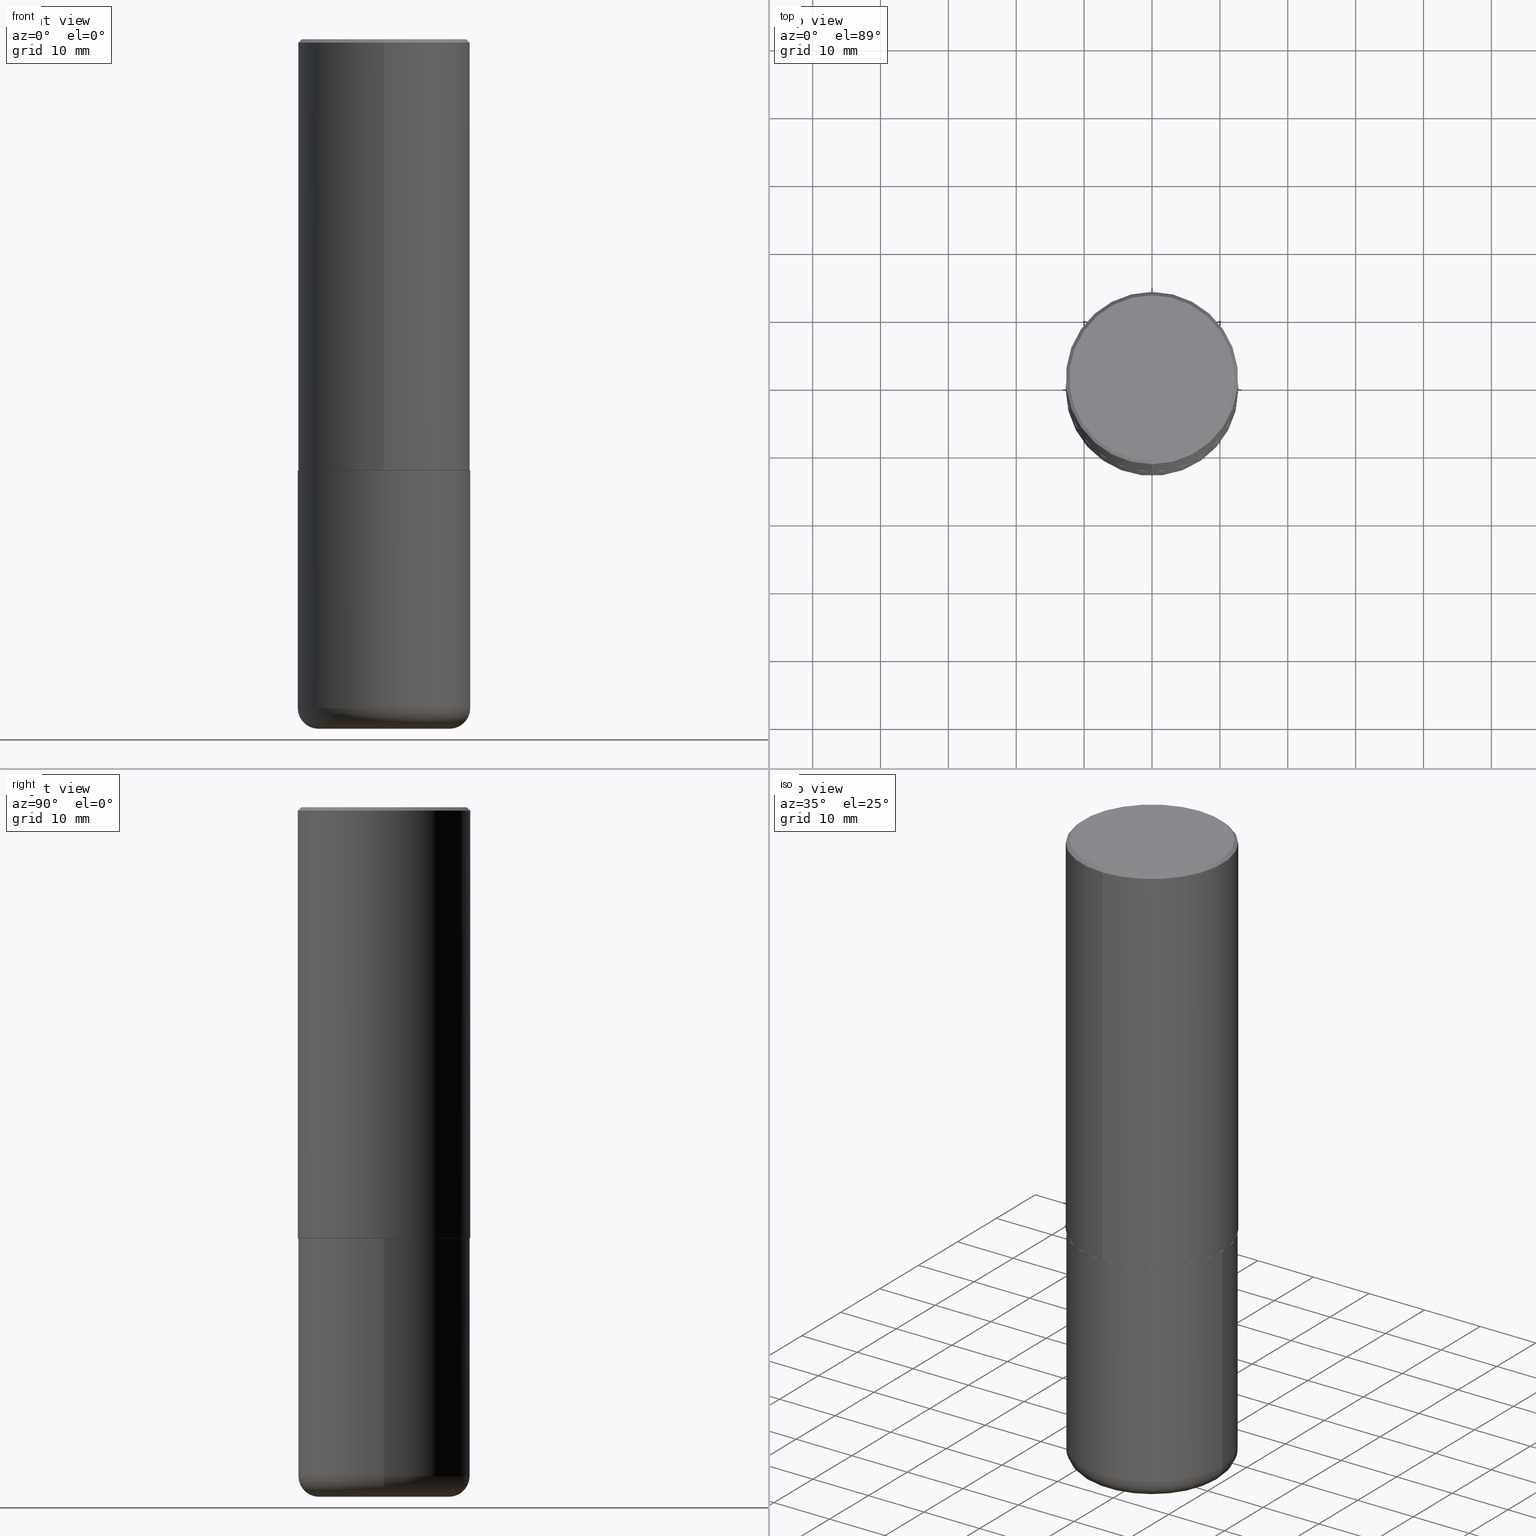
[diagram: canonical four-view strip — front | top / right | iso, engineering-drawing reading convention]
A machine part, canonical four-view strip (front | top / right | iso — engineering-drawing reading convention). The complete STEP part file that produces these views, byte-faithful:
ISO-10303-21;
HEADER;
FILE_DESCRIPTION (( 'STEP AP203' ),
    '1' );
FILE_NAME ('37217.STEP',
    '2024-03-01T22:07:04',
    ( '' ),
    ( '' ),
    'SwSTEP 2.0',
    'SolidWorks 2023',
    '' );
FILE_SCHEMA (( 'CONFIG_CONTROL_DESIGN' ));
ENDSEC;

DATA;
#1 = VECTOR ( 'NONE', #87, 39.37007874015748143 ) ;
#2 = VERTEX_POINT ( 'NONE', #154 ) ;
#3 = EDGE_CURVE ( 'NONE', #106, #397, #16, .T. ) ;
#4 = ORIENTED_EDGE ( 'NONE', *, *, #101, .T. ) ;
#5 = EDGE_LOOP ( 'NONE', ( #300, #267, #142, #177 ) ) ;
#6 = VERTEX_POINT ( 'NONE', #117 ) ;
#7 = ADVANCED_FACE ( 'NONE', ( #236 ), #368, .T. ) ;
#8 = ORIENTED_EDGE ( 'NONE', *, *, #354, .F. ) ;
#9 = DIRECTION ( 'NONE',  ( -2.444946167972934928E-29, 3.492229786509738161E-15, 1.000000000000000000 ) ) ;
#10 = DIRECTION ( 'NONE',  ( 2.444946167972934647E-29, -3.492229786509738161E-15, -1.000000000000000000 ) ) ;
#11 = CARTESIAN_POINT ( 'NONE',  ( -3.484498376165385415E-15, -0.4990000000000087144, -2.499999999999998668 ) ) ;
#12 = CIRCLE ( 'NONE', #123, 0.5000000000000000000 ) ;
#13 = AXIS2_PLACEMENT_3D ( 'NONE', #340, #20, #186 ) ;
#14 = DIRECTION ( 'NONE',  ( -2.444946167972934928E-29, 3.492229786509738161E-15, 1.000000000000000000 ) ) ;
#15 = CARTESIAN_POINT ( 'NONE',  ( -0.3799999999999999489, -1.063004843769755357E-14, -4.000000000000000888 ) ) ;
#16 = LINE ( 'NONE', #111, #394 ) ;
#17 = CC_DESIGN_DATE_AND_TIME_ASSIGNMENT ( #414, #100, ( #195 ) ) ;
#18 = DIRECTION ( 'NONE',  ( -4.937700262165728178E-15, -0.7071067811867141062, 0.7071067811863809283 ) ) ;
#19 = DIRECTION ( 'NONE',  ( -2.445468806185136597E-29, 3.491481338843145583E-15, 1.000000000000000000 ) ) ;
#20 = DIRECTION ( 'NONE',  ( -2.445468806185136597E-29, 3.491481338843145583E-15, 1.000000000000000000 ) ) ;
#21 = CARTESIAN_POINT ( 'NONE',  ( 3.552713678800501718E-15, 0.5000000000000001110, -1.746114893254869475E-15 ) ) ;
#22 = TOROIDAL_SURFACE ( 'NONE', #13, 0.3799999999999999489, 0.1200000000000002176 ) ;
#23 = EDGE_CURVE ( 'NONE', #257, #2, #77, .T. ) ;
#24 = AXIS2_PLACEMENT_3D ( 'NONE', #163, #318, #135 ) ;
#25 = LINE ( 'NONE', #413, #225 ) ;
#26 = APPLICATION_CONTEXT ( 'configuration controlled 3d designs of mechanical parts and assemblies' ) ;
#27 = PERSON_AND_ORGANIZATION ( #297, #45 ) ;
#28 = DIRECTION ( 'NONE',  ( -2.444946167972934928E-29, 3.492229786509738161E-15, 1.000000000000000000 ) ) ;
#29 = VERTEX_POINT ( 'NONE', #344 ) ;
#30 = CALENDAR_DATE ( 2024, 1, 3 ) ;
#31 = APPROVAL_ROLE ( '' ) ;
#32 = AXIS2_PLACEMENT_3D ( 'NONE', #220, #379, #159 ) ;
#33 = CONICAL_SURFACE ( 'NONE', #86, 0.5000000000000000000, 0.7853981633974449483 ) ;
#34 = EDGE_CURVE ( 'NONE', #104, #303, #343, .T. ) ;
#35 = PRODUCT_DEFINITION_SHAPE ( 'NONE', 'NONE',  #195 ) ;
#36 = ORIENTED_EDGE ( 'NONE', *, *, #155, .T. ) ;
#37 = CC_DESIGN_PERSON_AND_ORGANIZATION_ASSIGNMENT ( #129, #219, ( #401 ) ) ;
#38 = AXIS2_PLACEMENT_3D ( 'NONE', #277, #14, #125 ) ;
#39 = LOCAL_TIME ( 17, 7, 4.000000000000000000, #165 ) ;
#40 = ORIENTED_EDGE ( 'NONE', *, *, #3, .F. ) ;
#41 = ORIENTED_EDGE ( 'NONE', *, *, #354, .T. ) ;
#42 = VERTEX_POINT ( 'NONE', #11 ) ;
#43 = CC_DESIGN_PERSON_AND_ORGANIZATION_ASSIGNMENT ( #350, #59, ( #70 ) ) ;
#44 = ORIENTED_EDGE ( 'NONE', *, *, #224, .T. ) ;
#45 = ORGANIZATION ( 'UNSPECIFIED', 'UNSPECIFIED', '' ) ;
#46 = DIRECTION ( 'NONE',  ( -1.000000000000000000, 6.982962677686265922E-15, -4.876176775795935793E-29 ) ) ;
#47 = ADVANCED_BREP_SHAPE_REPRESENTATION ( '37217', ( #338, #202, #24 ), #239 ) ;
#48 = CARTESIAN_POINT ( 'NONE',  ( 9.488418967998330085E-29, -1.354694759471140570E-14, -3.880000000000000338 ) ) ;
#49 = FACE_OUTER_BOUND ( 'NONE', #175, .T. ) ;
#50 = EDGE_CURVE ( 'NONE', #106, #257, #264, .T. ) ;
#51 = AXIS2_PLACEMENT_3D ( 'NONE', #90, #28, #161 ) ;
#52 = DIRECTION ( 'NONE',  ( -1.000000000000000000, 6.982962677686265922E-15, -4.876176775795935793E-29 ) ) ;
#53 = DIRECTION ( 'NONE',  ( 1.000000000000000000, -6.982962677686266711E-15, 4.876176775795935793E-29 ) ) ;
#54 = FACE_OUTER_BOUND ( 'NONE', #162, .T. ) ;
#55 = DIRECTION ( 'NONE',  ( -2.444946167972934928E-29, 3.492229786509738161E-15, 1.000000000000000000 ) ) ;
#56 = EDGE_CURVE ( 'NONE', #263, #322, #221, .T. ) ;
#57 = DIRECTION ( 'NONE',  ( 2.438088387897960049E-29, -3.491481338843145188E-15, -1.000000000000000000 ) ) ;
#58 = LINE ( 'NONE', #192, #316 ) ;
#59 = PERSON_AND_ORGANIZATION_ROLE ( 'classification_officer' ) ;
#60 = AXIS2_PLACEMENT_3D ( 'NONE', #370, #278, #184 ) ;
#61 = CYLINDRICAL_SURFACE ( 'NONE', #383, 0.5000000000000000000 ) ;
#62 =( NAMED_UNIT ( * ) PLANE_ANGLE_UNIT ( ) SI_UNIT ( $, .RADIAN. ) );
#63 = PERSON_AND_ORGANIZATION ( #297, #45 ) ;
#64 = EDGE_CURVE ( 'NONE', #42, #205, #273, .T. ) ;
#65 = ORIENTED_EDGE ( 'NONE', *, *, #301, .T. ) ;
#66 = ADVANCED_FACE ( 'NONE', ( #109 ), #112, .T. ) ;
#67 = EDGE_LOOP ( 'NONE', ( #138, #271, #384, #4 ) ) ;
#68 = AXIS2_PLACEMENT_3D ( 'NONE', #212, #275, #366 ) ;
#69 = AXIS2_PLACEMENT_3D ( 'NONE', #409, #339, #150 ) ;
#70 = SECURITY_CLASSIFICATION ( '', '', #133 ) ;
#71 = ORIENTED_EDGE ( 'NONE', *, *, #173, .T. ) ;
#72 = ORIENTED_EDGE ( 'NONE', *, *, #34, .F. ) ;
#73 = ADVANCED_FACE ( 'NONE', ( #398 ), #110, .T. ) ;
#74 = ORIENTED_EDGE ( 'NONE', *, *, #64, .T. ) ;
#75 = CARTESIAN_POINT ( 'NONE',  ( 4.889892335945895815E-31, -6.984459573019513448E-17, -0.02000000000000010797 ) ) ;
#76 = AXIS2_PLACEMENT_3D ( 'NONE', #346, #9, #341 ) ;
#77 = LINE ( 'NONE', #178, #164 ) ;
#78 = DIRECTION ( 'NONE',  ( 2.438088387897960049E-29, -3.491481338843145188E-15, -1.000000000000000000 ) ) ;
#79 = CARTESIAN_POINT ( 'NONE',  ( 6.112365419932337880E-29, -8.730574466274345798E-15, -2.500000000000000000 ) ) ;
#80 = ADVANCED_FACE ( 'NONE', ( #181 ), #280, .F. ) ;
#81 = FACE_OUTER_BOUND ( 'NONE', #228, .T. ) ;
#82 = DIRECTION ( 'NONE',  ( -6.982962677686265922E-15, -1.000000000000000000, 3.492229786509738161E-15 ) ) ;
#83 = CARTESIAN_POINT ( 'NONE',  ( -0.5000000000000000000, -7.585111792109135179E-15, -2.500000000000000000 ) ) ;
#84 = ORIENTED_EDGE ( 'NONE', *, *, #23, .F. ) ;
#85 = AXIS2_PLACEMENT_3D ( 'NONE', #373, #311, #122 ) ;
#86 = AXIS2_PLACEMENT_3D ( 'NONE', #374, #158, #283 ) ;
#87 = DIRECTION ( 'NONE',  ( 4.937700262164530687E-15, 0.7071067811865426878, -0.7071067811865523467 ) ) ;
#88 = EDGE_CURVE ( 'NONE', #6, #29, #12, .T. ) ;
#89 = DIRECTION ( 'NONE',  ( -1.000000000000000000, 7.105427357601009747E-15, 0.000000000000000000 ) ) ;
#90 = CARTESIAN_POINT ( 'NONE',  ( 6.109920473764365540E-29, -8.727082236487837614E-15, -2.499000000000000110 ) ) ;
#91 = DATE_AND_TIME ( #30, #369 ) ;
#92 = DIRECTION ( 'NONE',  ( -6.982962677686265922E-15, -1.000000000000000000, 3.492229786509738161E-15 ) ) ;
#93 = AXIS2_PLACEMENT_3D ( 'NONE', #281, #130, #410 ) ;
#94 = APPROVAL_PERSON_ORGANIZATION ( #223, #312, #31 ) ;
#95 = CARTESIAN_POINT ( 'NONE',  ( 3.549160965121762351E-15, 0.4989999999999912283, -2.500000000000001776 ) ) ;
#96 = EDGE_LOOP ( 'NONE', ( #334, #137, #391, #230 ) ) ;
#97 = DATE_TIME_ROLE ( 'classification_date' ) ;
#98 = EDGE_CURVE ( 'NONE', #303, #104, #176, .T. ) ;
#99 = DIMENSIONAL_EXPONENTS ( 1.000000000000000000, 0.000000000000000000, 0.000000000000000000, 0.000000000000000000, 0.000000000000000000, 0.000000000000000000, 0.000000000000000000 ) ;
#100 = DATE_TIME_ROLE ( 'creation_date' ) ;
#101 = EDGE_CURVE ( 'NONE', #29, #6, #256, .T. ) ;
#102 = ORIENTED_EDGE ( 'NONE', *, *, #233, .F. ) ;
#103 = ORIENTED_EDGE ( 'NONE', *, *, #98, .F. ) ;
#104 = VERTEX_POINT ( 'NONE', #15 ) ;
#105 = AXIS2_PLACEMENT_3D ( 'NONE', #237, #378, #118 ) ;
#106 = VERTEX_POINT ( 'NONE', #400 ) ;
#107 = ADVANCED_FACE ( 'NONE', ( #151 ), #248, .T. ) ;
#108 = ORIENTED_EDGE ( 'NONE', *, *, #64, .F. ) ;
#109 = FACE_OUTER_BOUND ( 'NONE', #5, .T. ) ;
#110 = CYLINDRICAL_SURFACE ( 'NONE', #335, 0.5000000000000000000 ) ;
#111 = CARTESIAN_POINT ( 'NONE',  ( -0.5000000000000000000, 3.552713678800500929E-15, -2.459467545127452891E-29 ) ) ;
#112 = CYLINDRICAL_SURFACE ( 'NONE', #76, 0.5000000000000001110 ) ;
#113 = DIRECTION ( 'NONE',  ( 6.982962677686265922E-15, 1.000000000000000000, -3.492229786509738161E-15 ) ) ;
#114 = CIRCLE ( 'NONE', #93, 0.5000000000000001110 ) ;
#115 = ADVANCED_FACE ( 'NONE', ( #119 ), #245, .F. ) ;
#116 = CARTESIAN_POINT ( 'NONE',  ( 6.113672015462842613E-29, -8.728703347107864943E-15, -2.500000000000000000 ) ) ;
#117 = CARTESIAN_POINT ( 'NONE',  ( -3.430248998885764992E-15, -0.5000000000000001110, -0.01999999999999835937 ) ) ;
#118 = DIRECTION ( 'NONE',  ( 1.000000000000000000, -6.982962677686272233E-15, 0.000000000000000000 ) ) ;
#119 = FACE_OUTER_BOUND ( 'NONE', #203, .T. ) ;
#120 = DIRECTION ( 'NONE',  ( -2.444946167972934928E-29, 3.492229786509738161E-15, 1.000000000000000000 ) ) ;
#121 = CC_DESIGN_PERSON_AND_ORGANIZATION_ASSIGNMENT ( #27, #385, ( #195 ) ) ;
#122 = DIRECTION ( 'NONE',  ( -6.982962677686265922E-15, -1.000000000000000000, 3.492229786509738161E-15 ) ) ;
#123 = AXIS2_PLACEMENT_3D ( 'NONE', #187, #235, #377 ) ;
#124 = UNCERTAINTY_MEASURE_WITH_UNIT (LENGTH_MEASURE( 1.000000000000000082E-05 ), #353, 'distance_accuracy_value', 'NONE');
#125 = DIRECTION ( 'NONE',  ( -6.982962677686265922E-15, -1.000000000000000000, 3.284787166730577015E-15 ) ) ;
#126 = LINE ( 'NONE', #408, #407 ) ;
#127 = MECHANICAL_CONTEXT ( 'NONE', #324, 'mechanical' ) ;
#128 = DIRECTION ( 'NONE',  ( 5.024295867789263036E-15, 0.7071067811867189912, 0.7071067811863760433 ) ) ;
#129 = PERSON_AND_ORGANIZATION ( #297, #45 ) ;
#130 = DIRECTION ( 'NONE',  ( -2.445468806185136597E-29, 3.491481338843145583E-15, 1.000000000000000000 ) ) ;
#131 = ORIENTED_EDGE ( 'NONE', *, *, #143, .T. ) ;
#132 = CIRCLE ( 'NONE', #361, 0.4989999999999999991 ) ;
#133 = SECURITY_CLASSIFICATION_LEVEL ( 'unclassified' ) ;
#134 = DATE_AND_TIME ( #416, #396 ) ;
#135 = DIRECTION ( 'NONE',  ( 1.000000000000000000, 0.000000000000000000, 0.000000000000000000 ) ) ;
#136 = AXIS2_PLACEMENT_3D ( 'NONE', #252, #286, #92 ) ;
#137 = ORIENTED_EDGE ( 'NONE', *, *, #233, .T. ) ;
#138 = ORIENTED_EDGE ( 'NONE', *, *, #173, .F. ) ;
#139 = ORIENTED_EDGE ( 'NONE', *, *, #218, .T. ) ;
#140 = ADVANCED_FACE ( 'NONE', ( #284 ), #61, .T. ) ;
#141 = AXIS2_PLACEMENT_3D ( 'NONE', #342, #345, #180 ) ;
#142 = ORIENTED_EDGE ( 'NONE', *, *, #88, .F. ) ;
#143 = EDGE_CURVE ( 'NONE', #205, #266, #25, .T. ) ;
#144 = DIRECTION ( 'NONE',  ( -6.982962677686265922E-15, -1.000000000000000000, 3.491643216902136408E-15 ) ) ;
#145 = DIRECTION ( 'NONE',  ( -6.982962677686265922E-15, -1.000000000000000000, 3.284787166730577015E-15 ) ) ;
#146 = LINE ( 'NONE', #210, #1 ) ;
#147 = CARTESIAN_POINT ( 'NONE',  ( 0.000000000000000000, 0.000000000000000000, 0.000000000000000000 ) ) ;
#148 = CIRCLE ( 'NONE', #389, 0.5000000000000000000 ) ;
#149 = DIRECTION ( 'NONE',  ( -2.445468806185136597E-29, 3.491481338843145583E-15, 1.000000000000000000 ) ) ;
#150 = DIRECTION ( 'NONE',  ( -6.982962677686265922E-15, -1.000000000000000000, 3.492229786509738161E-15 ) ) ;
#151 = FACE_OUTER_BOUND ( 'NONE', #67, .T. ) ;
#152 = DIRECTION ( 'NONE',  ( -2.444946167972934928E-29, 3.492229786509738161E-15, 1.000000000000000000 ) ) ;
#153 = CYLINDRICAL_SURFACE ( 'NONE', #69, 0.5000000000000001110 ) ;
#154 = CARTESIAN_POINT ( 'NONE',  ( 0.5000000000000000000, -1.222018468595099830E-14, -2.500000000000000000 ) ) ;
#155 = EDGE_CURVE ( 'NONE', #257, #106, #114, .T. ) ;
#156 =( LENGTH_UNIT ( ) NAMED_UNIT ( * ) SI_UNIT ( $, .METRE. ) );
#157 = VECTOR ( 'NONE', #348, 39.37007874015748143 ) ;
#158 = DIRECTION ( 'NONE',  ( 2.444946167972934928E-29, -3.492229786509738161E-15, -1.000000000000000000 ) ) ;
#159 = DIRECTION ( 'NONE',  ( 1.000000000000000000, -6.982962677686269077E-15, 0.000000000000000000 ) ) ;
#160 = COORDINATED_UNIVERSAL_TIME_OFFSET ( 5, 0, .BEHIND. ) ;
#161 = DIRECTION ( 'NONE',  ( -6.982962677686266711E-15, -1.000000000000000000, 3.278217592397114284E-15 ) ) ;
#162 = EDGE_LOOP ( 'NONE', ( #229, #44 ) ) ;
#163 = CARTESIAN_POINT ( 'NONE',  ( 0.000000000000000000, 0.000000000000000000, 0.000000000000000000 ) ) ;
#164 = VECTOR ( 'NONE', #246, 39.37007874015748143 ) ;
#165 = COORDINATED_UNIVERSAL_TIME_OFFSET ( 5, 0, .BEHIND. ) ;
#166 = CC_DESIGN_APPROVAL ( #211, ( #401 ) ) ;
#167 = PRODUCT_RELATED_PRODUCT_CATEGORY ( 'detail', '', ( #199 ) ) ;
#168 = PERSON_AND_ORGANIZATION ( #297, #45 ) ;
#169 = APPLICATION_PROTOCOL_DEFINITION ( 'international standard', 'config_control_design', 1994, #26 ) ;
#170 = ORIENTED_EDGE ( 'NONE', *, *, #261, .F. ) ;
#171 = CIRCLE ( 'NONE', #32, 0.5000000000000000000 ) ;
#172 = ORIENTED_EDGE ( 'NONE', *, *, #143, .F. ) ;
#173 = EDGE_CURVE ( 'NONE', #322, #6, #58, .T. ) ;
#174 = EDGE_LOOP ( 'NONE', ( #74, #131, #362, #268 ) ) ;
#175 = EDGE_LOOP ( 'NONE', ( #170, #390, #41, #347 ) ) ;
#176 = CIRCLE ( 'NONE', #68, 0.3799999999999999489 ) ;
#177 = ORIENTED_EDGE ( 'NONE', *, *, #185, .F. ) ;
#178 = CARTESIAN_POINT ( 'NONE',  ( 0.5000000000000000000, -3.491481338843133355E-15, 2.438088387897967896E-29 ) ) ;
#179 = CARTESIAN_POINT ( 'NONE',  ( 6.109920473764365540E-29, -8.727082236487837614E-15, -2.499000000000000110 ) ) ;
#180 = DIRECTION ( 'NONE',  ( 1.000000000000000000, -6.982962677686268288E-15, 4.883557194083113462E-29 ) ) ;
#181 = FACE_OUTER_BOUND ( 'NONE', #260, .T. ) ;
#182 = CC_DESIGN_SECURITY_CLASSIFICATION ( #70, ( #401 ) ) ;
#183 = CARTESIAN_POINT ( 'NONE',  ( 3.421651712066270057E-15, 0.4799999999999998157, -1.449679880669387470E-15 ) ) ;
#184 = DIRECTION ( 'NONE',  ( 6.982962677686265922E-15, 1.000000000000000000, -3.491643216902136408E-15 ) ) ;
#185 = EDGE_CURVE ( 'NONE', #200, #6, #126, .T. ) ;
#186 = DIRECTION ( 'NONE',  ( 1.000000000000000000, -6.982962677686268288E-15, 4.883557194083113462E-29 ) ) ;
#187 = CARTESIAN_POINT ( 'NONE',  ( 4.889892335945895815E-31, -6.984459573019513448E-17, -0.02000000000000010797 ) ) ;
#188 = DIRECTION ( 'NONE',  ( -6.982962677686266711E-15, -1.000000000000000000, 3.278217592397114284E-15 ) ) ;
#189 = DIRECTION ( 'NONE',  ( -4.851104656540947709E-15, -0.7071067811865475727, -0.7071067811865474617 ) ) ;
#190 = CC_DESIGN_APPROVAL ( #191, ( #195 ) ) ;
#191 = APPROVAL ( #197, 'UNSPECIFIED' ) ;
#192 = CARTESIAN_POINT ( 'NONE',  ( -3.430248998885764992E-15, -0.5000000000000001110, -0.01999999999999835937 ) ) ;
#193 = COORDINATED_UNIVERSAL_TIME_OFFSET ( 5, 0, .BEHIND. ) ;
#194 = LENGTH_MEASURE_WITH_UNIT ( LENGTH_MEASURE( 0.02539999999999999897 ), #156 );
#195 = PRODUCT_DEFINITION ( 'UNKNOWN', '', #401, #215 ) ;
#196 = AXIS2_PLACEMENT_3D ( 'NONE', #179, #372, #188 ) ;
#197 = APPROVAL_STATUS ( 'not_yet_approved' ) ;
#198 = ORIENTED_EDGE ( 'NONE', *, *, #23, .T. ) ;
#199 = PRODUCT ( '37217', '37217', '', ( #127 ) ) ;
#200 = VERTEX_POINT ( 'NONE', #319 ) ;
#201 = AXIS2_PLACEMENT_3D ( 'NONE', #403, #242, #82 ) ;
#202 = MANIFOLD_SOLID_BREP ( 'Body-Move/Copy2[2]', #296 ) ;
#203 = EDGE_LOOP ( 'NONE', ( #108, #204 ) ) ;
#204 = ORIENTED_EDGE ( 'NONE', *, *, #321, .F. ) ;
#205 = VERTEX_POINT ( 'NONE', #95 ) ;
#206 = AXIS2_PLACEMENT_3D ( 'NONE', #304, #57, #52 ) ;
#207 = FACE_OUTER_BOUND ( 'NONE', #234, .T. ) ;
#208 = DIRECTION ( 'NONE',  ( 1.000000000000000000, -6.982962677686267499E-15, 0.000000000000000000 ) ) ;
#209 = CARTESIAN_POINT ( 'NONE',  ( 0.3799999999999999489, -1.661945117289336400E-14, -4.000000000000000888 ) ) ;
#210 = CARTESIAN_POINT ( 'NONE',  ( 3.491481338843133355E-15, 0.4999999999999999445, -0.02000000000000185310 ) ) ;
#211 = APPROVAL ( #222, 'UNSPECIFIED' ) ;
#212 = CARTESIAN_POINT ( 'NONE',  ( 9.781875224740547508E-29, -1.396592535537258391E-14, -4.000000000000000888 ) ) ;
#213 = CIRCLE ( 'NONE', #136, 0.4799999999999998157 ) ;
#214 = FACE_OUTER_BOUND ( 'NONE', #360, .T. ) ;
#215 = DESIGN_CONTEXT ( 'detailed design', #26, 'design' ) ;
#216 = LINE ( 'NONE', #241, #325 ) ;
#217 = CARTESIAN_POINT ( 'NONE',  ( 6.113672015462842613E-29, -8.728703347107864943E-15, -2.500000000000000000 ) ) ;
#218 = EDGE_CURVE ( 'NONE', #322, #263, #213, .T. ) ;
#219 = PERSON_AND_ORGANIZATION_ROLE ( 'design_supplier' ) ;
#220 = CARTESIAN_POINT ( 'NONE',  ( 6.113672015462842613E-29, -8.728703347107864943E-15, -2.500000000000000000 ) ) ;
#221 = CIRCLE ( 'NONE', #201, 0.4799999999999998157 ) ;
#222 = APPROVAL_STATUS ( 'not_yet_approved' ) ;
#223 = PERSON_AND_ORGANIZATION ( #297, #45 ) ;
#224 = EDGE_CURVE ( 'NONE', #397, #2, #171, .T. ) ;
#225 = VECTOR ( 'NONE', #128, 39.37007874015748143 ) ;
#226 = APPLICATION_PROTOCOL_DEFINITION ( 'international standard', 'config_control_design', 1994, #324 ) ;
#227 = APPROVAL_PERSON_ORGANIZATION ( #168, #191, #288 ) ;
#228 = EDGE_LOOP ( 'NONE', ( #103, #72 ) ) ;
#229 = ORIENTED_EDGE ( 'NONE', *, *, #243, .T. ) ;
#230 = ORIENTED_EDGE ( 'NONE', *, *, #101, .F. ) ;
#231 = CIRCLE ( 'NONE', #51, 0.5000000000000002220 ) ;
#232 = EDGE_LOOP ( 'NONE', ( #36, #329, #392, #84 ) ) ;
#233 = EDGE_CURVE ( 'NONE', #266, #200, #231, .T. ) ;
#234 = EDGE_LOOP ( 'NONE', ( #172, #299, #65, #102 ) ) ;
#235 = DIRECTION ( 'NONE',  ( -2.444946167972934928E-29, 3.492229786509738161E-15, 1.000000000000000000 ) ) ;
#236 = FACE_OUTER_BOUND ( 'NONE', #174, .T. ) ;
#237 = CARTESIAN_POINT ( 'NONE',  ( 0.3799999999999999489, -1.620047341223218736E-14, -3.880000000000000338 ) ) ;
#238 = AXIS2_PLACEMENT_3D ( 'NONE', #305, #272, #208 ) ;
#239 =( GEOMETRIC_REPRESENTATION_CONTEXT ( 3 ) GLOBAL_UNCERTAINTY_ASSIGNED_CONTEXT ( ( #124 ) ) GLOBAL_UNIT_ASSIGNED_CONTEXT ( ( #353, #62, #381 ) ) REPRESENTATION_CONTEXT ( 'NONE', 'WORKASPACE' ) );
#240 = CARTESIAN_POINT ( 'NONE',  ( 3.351822085289406364E-15, 0.4799999999999998157, -1.562975089097030468E-15 ) ) ;
#241 = CARTESIAN_POINT ( 'NONE',  ( -3.484498376165385415E-15, -0.4990000000000087144, -2.499999999999998668 ) ) ;
#242 = DIRECTION ( 'NONE',  ( -2.444946167972934928E-29, 3.492229786509738161E-15, 1.000000000000000000 ) ) ;
#243 = EDGE_CURVE ( 'NONE', #2, #397, #148, .T. ) ;
#244 = LINE ( 'NONE', #21, #157 ) ;
#245 = PLANE ( 'NONE',  #85 ) ;
#246 = DIRECTION ( 'NONE',  ( -2.445468806185136877E-29, 3.491481338843145188E-15, 1.000000000000000000 ) ) ;
#247 = PLANE ( 'NONE',  #206 ) ;
#248 = CONICAL_SURFACE ( 'NONE', #60, 0.5000000000000000000, 0.7853981633974449483 ) ;
#249 = FACE_OUTER_BOUND ( 'NONE', #395, .T. ) ;
#250 = CARTESIAN_POINT ( 'NONE',  ( 0.000000000000000000, 0.000000000000000000, 0.000000000000000000 ) ) ;
#251 = PERSON_AND_ORGANIZATION_ROLE ( 'creator' ) ;
#252 = CARTESIAN_POINT ( 'NONE',  ( -5.540013713897219376E-45, 7.913058030796886371E-31, 2.265904168552862416E-16 ) ) ;
#253 = COORDINATED_UNIVERSAL_TIME_OFFSET ( 5, 0, .BEHIND. ) ;
#254 = DIRECTION ( 'NONE',  ( 1.000000000000000000, -6.982962677686266711E-15, 4.876176775795935793E-29 ) ) ;
#255 = CLOSED_SHELL ( 'NONE', ( #73, #327, #405, #140, #393, #363 ) ) ;
#256 = CIRCLE ( 'NONE', #356, 0.5000000000000000000 ) ;
#257 = VERTEX_POINT ( 'NONE', #351 ) ;
#258 = LOCAL_TIME ( 17, 7, 4.000000000000000000, #193 ) ;
#259 = CALENDAR_DATE ( 2024, 1, 3 ) ;
#260 = EDGE_LOOP ( 'NONE', ( #333, #139 ) ) ;
#261 = EDGE_CURVE ( 'NONE', #104, #106, #352, .T. ) ;
#262 = PERSON_AND_ORGANIZATION ( #297, #45 ) ;
#263 = VERTEX_POINT ( 'NONE', #183 ) ;
#264 = CIRCLE ( 'NONE', #269, 0.5000000000000001110 ) ;
#265 = CC_DESIGN_PERSON_AND_ORGANIZATION_ASSIGNMENT ( #293, #251, ( #401 ) ) ;
#266 = VERTEX_POINT ( 'NONE', #306 ) ;
#267 = ORIENTED_EDGE ( 'NONE', *, *, #357, .T. ) ;
#268 = ORIENTED_EDGE ( 'NONE', *, *, #301, .F. ) ;
#269 = AXIS2_PLACEMENT_3D ( 'NONE', #48, #149, #276 ) ;
#270 = AXIS2_PLACEMENT_3D ( 'NONE', #116, #78, #46 ) ;
#271 = ORIENTED_EDGE ( 'NONE', *, *, #56, .F. ) ;
#272 = DIRECTION ( 'NONE',  ( -2.445468806185136597E-29, 3.491481338843145583E-15, 1.000000000000000000 ) ) ;
#273 = CIRCLE ( 'NONE', #302, 0.4989999999999999991 ) ;
#274 = LOCAL_TIME ( 17, 7, 4.000000000000000000, #160 ) ;
#275 = DIRECTION ( 'NONE',  ( -2.445468806185136597E-29, 3.491481338843145583E-15, 1.000000000000000000 ) ) ;
#276 = DIRECTION ( 'NONE',  ( 1.000000000000000000, -6.982962677686265133E-15, 0.000000000000000000 ) ) ;
#277 = CARTESIAN_POINT ( 'NONE',  ( 6.112365419932337880E-29, -8.730574466274345798E-15, -2.500000000000000000 ) ) ;
#278 = DIRECTION ( 'NONE',  ( 2.444946167972934928E-29, -3.492229786509738161E-15, -1.000000000000000000 ) ) ;
#279 = DIRECTION ( 'NONE',  ( 7.105427357601001859E-15, 1.000000000000000000, -3.491481338843145583E-15 ) ) ;
#280 = PLANE ( 'NONE',  #282 ) ;
#281 = CARTESIAN_POINT ( 'NONE',  ( 9.488418967998330085E-29, -1.354694759471140570E-14, -3.880000000000000338 ) ) ;
#282 = AXIS2_PLACEMENT_3D ( 'NONE', #240, #10, #113 ) ;
#283 = DIRECTION ( 'NONE',  ( 6.982962677686265922E-15, 1.000000000000000000, -3.491643216902136408E-15 ) ) ;
#284 = FACE_OUTER_BOUND ( 'NONE', #359, .T. ) ;
#285 = CARTESIAN_POINT ( 'NONE',  ( 6.112365419932337880E-29, -8.730574466274345798E-15, -2.500000000000000000 ) ) ;
#286 = DIRECTION ( 'NONE',  ( -2.444946167972934928E-29, 3.492229786509738161E-15, 1.000000000000000000 ) ) ;
#287 = ORIENTED_EDGE ( 'NONE', *, *, #98, .T. ) ;
#288 = APPROVAL_ROLE ( '' ) ;
#289 = AXIS2_PLACEMENT_3D ( 'NONE', #314, #279, #89 ) ;
#290 = ADVANCED_FACE ( 'NONE', ( #207 ), #307, .T. ) ;
#291 = COORDINATED_UNIVERSAL_TIME_OFFSET ( 5, 0, .BEHIND. ) ;
#292 = SHAPE_DEFINITION_REPRESENTATION ( #35, #47 ) ;
#293 = PERSON_AND_ORGANIZATION ( #297, #45 ) ;
#294 = ADVANCED_FACE ( 'NONE', ( #371 ), #153, .T. ) ;
#295 = ORIENTED_EDGE ( 'NONE', *, *, #224, .F. ) ;
#296 = CLOSED_SHELL ( 'NONE', ( #7, #66, #376, #107, #294, #290, #115, #80 ) ) ;
#297 = PERSON ( 'UNSPECIFIED', 'UNSPECIFIED', 'UNSPECIFIED', ('UNSPECIFIED'), ('UNSPECIFIED'), ('UNSPECIFIED') ) ;
#298 = ORIENTED_EDGE ( 'NONE', *, *, #261, .T. ) ;
#299 = ORIENTED_EDGE ( 'NONE', *, *, #321, .T. ) ;
#300 = ORIENTED_EDGE ( 'NONE', *, *, #367, .T. ) ;
#301 = EDGE_CURVE ( 'NONE', #42, #200, #216, .T. ) ;
#302 = AXIS2_PLACEMENT_3D ( 'NONE', #285, #55, #399 ) ;
#303 = VERTEX_POINT ( 'NONE', #209 ) ;
#304 = CARTESIAN_POINT ( 'NONE',  ( 5.765792576136407414E-29, -1.971718428940261207E-14, -4.000000000000000000 ) ) ;
#305 = CARTESIAN_POINT ( 'NONE',  ( 9.781875224740547508E-29, -1.396592535537258391E-14, -4.000000000000000888 ) ) ;
#306 = CARTESIAN_POINT ( 'NONE',  ( 3.552713678800533273E-15, 0.4999999999999916178, -2.499000000000001886 ) ) ;
#307 = CONICAL_SURFACE ( 'NONE', #38, 0.4989999999999999991, 0.7853981633976873100 ) ;
#308 = CC_DESIGN_APPROVAL ( #312, ( #70 ) ) ;
#309 = ORIENTED_EDGE ( 'NONE', *, *, #155, .F. ) ;
#310 = DIRECTION ( 'NONE',  ( -6.982962677686265922E-15, -1.000000000000000000, 3.284787166730577015E-15 ) ) ;
#311 = DIRECTION ( 'NONE',  ( -2.444946167972934647E-29, 3.492229786509738161E-15, 1.000000000000000000 ) ) ;
#312 = APPROVAL ( #355, 'UNSPECIFIED' ) ;
#313 = DIRECTION ( 'NONE',  ( -2.445468806185136877E-29, 3.491481338843145188E-15, 1.000000000000000000 ) ) ;
#314 = CARTESIAN_POINT ( 'NONE',  ( -0.3799999999999999489, -1.084688519882302575E-14, -3.880000000000000338 ) ) ;
#315 = DIRECTION ( 'NONE',  ( -2.445468806185136597E-29, 3.491481338843145583E-15, 1.000000000000000000 ) ) ;
#316 = VECTOR ( 'NONE', #189, 39.37007874015748143 ) ;
#317 = APPROVAL_PERSON_ORGANIZATION ( #63, #211, #320 ) ;
#318 = DIRECTION ( 'NONE',  ( 0.000000000000000000, 0.000000000000000000, 1.000000000000000000 ) ) ;
#319 = CARTESIAN_POINT ( 'NONE',  ( -3.491481338843073796E-15, -0.5000000000000089928, -2.498999999999998778 ) ) ;
#320 = APPROVAL_ROLE ( '' ) ;
#321 = EDGE_CURVE ( 'NONE', #205, #42, #132, .T. ) ;
#322 = VERTEX_POINT ( 'NONE', #404 ) ;
#323 = DATE_AND_TIME ( #259, #274 ) ;
#324 = APPLICATION_CONTEXT ( 'configuration controlled 3d designs of mechanical parts and assemblies' ) ;
#325 = VECTOR ( 'NONE', #18, 39.37007874015748143 ) ;
#326 = APPROVAL_DATE_TIME ( #134, #312 ) ;
#327 = ADVANCED_FACE ( 'NONE', ( #249 ), #415, .T. ) ;
#328 = PERSON_AND_ORGANIZATION_ROLE ( 'design_owner' ) ;
#329 = ORIENTED_EDGE ( 'NONE', *, *, #3, .T. ) ;
#330 = ORIENTED_EDGE ( 'NONE', *, *, #411, .F. ) ;
#331 = CIRCLE ( 'NONE', #105, 0.1200000000000002176 ) ;
#332 = ORIENTED_EDGE ( 'NONE', *, *, #218, .F. ) ;
#333 = ORIENTED_EDGE ( 'NONE', *, *, #56, .T. ) ;
#334 = ORIENTED_EDGE ( 'NONE', *, *, #357, .F. ) ;
#335 = AXIS2_PLACEMENT_3D ( 'NONE', #147, #19, #53 ) ;
#336 = DIRECTION ( 'NONE',  ( -2.444946167972934928E-29, 3.492229786509738161E-15, 1.000000000000000000 ) ) ;
#337 = CC_DESIGN_PERSON_AND_ORGANIZATION_ASSIGNMENT ( #262, #328, ( #199 ) ) ;
#338 = MANIFOLD_SOLID_BREP ( 'Body-Move/Copy2[1]', #255 ) ;
#339 = DIRECTION ( 'NONE',  ( -2.444946167972934928E-29, 3.492229786509738161E-15, 1.000000000000000000 ) ) ;
#340 = CARTESIAN_POINT ( 'NONE',  ( 9.488418967998330085E-29, -1.354694759471140570E-14, -3.880000000000000338 ) ) ;
#341 = DIRECTION ( 'NONE',  ( -6.982962677686265922E-15, -1.000000000000000000, 3.492229786509738161E-15 ) ) ;
#342 = CARTESIAN_POINT ( 'NONE',  ( 9.488418967998330085E-29, -1.354694759471140570E-14, -3.880000000000000338 ) ) ;
#343 = CIRCLE ( 'NONE', #238, 0.3799999999999999489 ) ;
#344 = CARTESIAN_POINT ( 'NONE',  ( 3.491481338843133355E-15, 0.4999999999999999445, -0.02000000000000185310 ) ) ;
#345 = DIRECTION ( 'NONE',  ( -2.445468806185136597E-29, 3.491481338843145583E-15, 1.000000000000000000 ) ) ;
#346 = CARTESIAN_POINT ( 'NONE',  ( 0.000000000000000000, 0.000000000000000000, 0.000000000000000000 ) ) ;
#347 = ORIENTED_EDGE ( 'NONE', *, *, #50, .F. ) ;
#348 = DIRECTION ( 'NONE',  ( -2.444946167972934928E-29, 3.492229786509738161E-15, 1.000000000000000000 ) ) ;
#349 = DIRECTION ( 'NONE',  ( -2.445468806185136597E-29, 3.491481338843145583E-15, 1.000000000000000000 ) ) ;
#350 = PERSON_AND_ORGANIZATION ( #297, #45 ) ;
#351 = CARTESIAN_POINT ( 'NONE',  ( 0.5000000000000001110, -1.703842893355454063E-14, -3.880000000000000338 ) ) ;
#352 = CIRCLE ( 'NONE', #289, 0.1200000000000002176 ) ;
#353 =( CONVERSION_BASED_UNIT ( 'INCH', #194 ) LENGTH_UNIT ( ) NAMED_UNIT ( #99 ) );
#354 = EDGE_CURVE ( 'NONE', #303, #257, #331, .T. ) ;
#355 = APPROVAL_STATUS ( 'not_yet_approved' ) ;
#356 = AXIS2_PLACEMENT_3D ( 'NONE', #75, #336, #144 ) ;
#357 = EDGE_CURVE ( 'NONE', #266, #29, #244, .T. ) ;
#358 = APPROVAL_DATE_TIME ( #91, #211 ) ;
#359 = EDGE_LOOP ( 'NONE', ( #40, #364, #198, #295 ) ) ;
#360 = EDGE_LOOP ( 'NONE', ( #332, #71, #365, #330 ) ) ;
#361 = AXIS2_PLACEMENT_3D ( 'NONE', #406, #120, #310 ) ;
#362 = ORIENTED_EDGE ( 'NONE', *, *, #367, .F. ) ;
#363 = ADVANCED_FACE ( 'NONE', ( #81 ), #247, .T. ) ;
#364 = ORIENTED_EDGE ( 'NONE', *, *, #50, .T. ) ;
#365 = ORIENTED_EDGE ( 'NONE', *, *, #88, .T. ) ;
#366 = DIRECTION ( 'NONE',  ( 1.000000000000000000, -6.982962677686267499E-15, 0.000000000000000000 ) ) ;
#367 = EDGE_CURVE ( 'NONE', #200, #266, #375, .T. ) ;
#368 = CONICAL_SURFACE ( 'NONE', #418, 0.4989999999999999991, 0.7853981633976873100 ) ;
#369 = LOCAL_TIME ( 17, 7, 4.000000000000000000, #253 ) ;
#370 = CARTESIAN_POINT ( 'NONE',  ( 4.889892335945895815E-31, -6.984459573019513448E-17, -0.02000000000000010797 ) ) ;
#371 = FACE_OUTER_BOUND ( 'NONE', #96, .T. ) ;
#372 = DIRECTION ( 'NONE',  ( -2.444946167972934928E-29, 3.492229786509738161E-15, 1.000000000000000000 ) ) ;
#373 = CARTESIAN_POINT ( 'NONE',  ( 6.112365419932337880E-29, -8.730574466274345798E-15, -2.500000000000000000 ) ) ;
#374 = CARTESIAN_POINT ( 'NONE',  ( 4.889892335945895815E-31, -6.984459573019513448E-17, -0.02000000000000010797 ) ) ;
#375 = CIRCLE ( 'NONE', #196, 0.5000000000000002220 ) ;
#376 = ADVANCED_FACE ( 'NONE', ( #214 ), #33, .T. ) ;
#377 = DIRECTION ( 'NONE',  ( -6.982962677686265922E-15, -1.000000000000000000, 3.491643216902136408E-15 ) ) ;
#378 = DIRECTION ( 'NONE',  ( -6.982962677686266711E-15, -1.000000000000000000, 3.491481338843145583E-15 ) ) ;
#379 = DIRECTION ( 'NONE',  ( -2.445468806185136597E-29, 3.491481338843145583E-15, 1.000000000000000000 ) ) ;
#380 = DIRECTION ( 'NONE',  ( 1.000000000000000000, -6.982962677686269077E-15, 0.000000000000000000 ) ) ;
#381 =( NAMED_UNIT ( * ) SI_UNIT ( $, .STERADIAN. ) SOLID_ANGLE_UNIT ( ) );
#382 = DIRECTION ( 'NONE',  ( -2.444946167972934928E-29, 3.492229786509738161E-15, 1.000000000000000000 ) ) ;
#383 = AXIS2_PLACEMENT_3D ( 'NONE', #250, #315, #254 ) ;
#384 = ORIENTED_EDGE ( 'NONE', *, *, #411, .T. ) ;
#385 = PERSON_AND_ORGANIZATION_ROLE ( 'creator' ) ;
#386 = CALENDAR_DATE ( 2024, 1, 3 ) ;
#387 = CC_DESIGN_DATE_AND_TIME_ASSIGNMENT ( #323, #97, ( #70 ) ) ;
#388 = CALENDAR_DATE ( 2024, 1, 3 ) ;
#389 = AXIS2_PLACEMENT_3D ( 'NONE', #217, #349, #380 ) ;
#390 = ORIENTED_EDGE ( 'NONE', *, *, #34, .T. ) ;
#391 = ORIENTED_EDGE ( 'NONE', *, *, #185, .T. ) ;
#392 = ORIENTED_EDGE ( 'NONE', *, *, #243, .F. ) ;
#393 = ADVANCED_FACE ( 'NONE', ( #49 ), #22, .T. ) ;
#394 = VECTOR ( 'NONE', #313, 39.37007874015748143 ) ;
#395 = EDGE_LOOP ( 'NONE', ( #287, #298, #309, #8 ) ) ;
#396 = LOCAL_TIME ( 17, 7, 4.000000000000000000, #291 ) ;
#397 = VERTEX_POINT ( 'NONE', #83 ) ;
#398 = FACE_OUTER_BOUND ( 'NONE', #232, .T. ) ;
#399 = DIRECTION ( 'NONE',  ( -6.982962677686265922E-15, -1.000000000000000000, 3.284787166730577015E-15 ) ) ;
#400 = CARTESIAN_POINT ( 'NONE',  ( -0.5000000000000001110, -9.994233915910901612E-15, -3.880000000000000338 ) ) ;
#401 = PRODUCT_DEFINITION_FORMATION_WITH_SPECIFIED_SOURCE ( 'ANY', '', #199, .NOT_KNOWN. ) ;
#402 = PLANE ( 'NONE',  #270 ) ;
#403 = CARTESIAN_POINT ( 'NONE',  ( -5.540013713897219376E-45, 7.913058030796886371E-31, 2.265904168552862416E-16 ) ) ;
#404 = CARTESIAN_POINT ( 'NONE',  ( -3.361644018908049661E-15, -0.4799999999999998157, 1.902860714379959855E-15 ) ) ;
#405 = ADVANCED_FACE ( 'NONE', ( #54 ), #402, .F. ) ;
#406 = CARTESIAN_POINT ( 'NONE',  ( 6.112365419932337880E-29, -8.730574466274345798E-15, -2.500000000000000000 ) ) ;
#407 = VECTOR ( 'NONE', #382, 39.37007874015748143 ) ;
#408 = CARTESIAN_POINT ( 'NONE',  ( -3.491481338843133750E-15, -0.5000000000000001110, 1.746114893254869475E-15 ) ) ;
#409 = CARTESIAN_POINT ( 'NONE',  ( 0.000000000000000000, 0.000000000000000000, 0.000000000000000000 ) ) ;
#410 = DIRECTION ( 'NONE',  ( 1.000000000000000000, -6.982962677686265133E-15, 0.000000000000000000 ) ) ;
#411 = EDGE_CURVE ( 'NONE', #263, #29, #146, .T. ) ;
#412 = APPROVAL_DATE_TIME ( #417, #191 ) ;
#413 = CARTESIAN_POINT ( 'NONE',  ( 3.545608251442960663E-15, 0.4989999999999912283, -2.500000000000001776 ) ) ;
#414 = DATE_AND_TIME ( #388, #258 ) ;
#415 = TOROIDAL_SURFACE ( 'NONE', #141, 0.3799999999999999489, 0.1200000000000002176 ) ;
#416 = CALENDAR_DATE ( 2024, 1, 3 ) ;
#417 = DATE_AND_TIME ( #386, #39 ) ;
#418 = AXIS2_PLACEMENT_3D ( 'NONE', #79, #152, #145 ) ;
ENDSEC;
END-ISO-10303-21;
